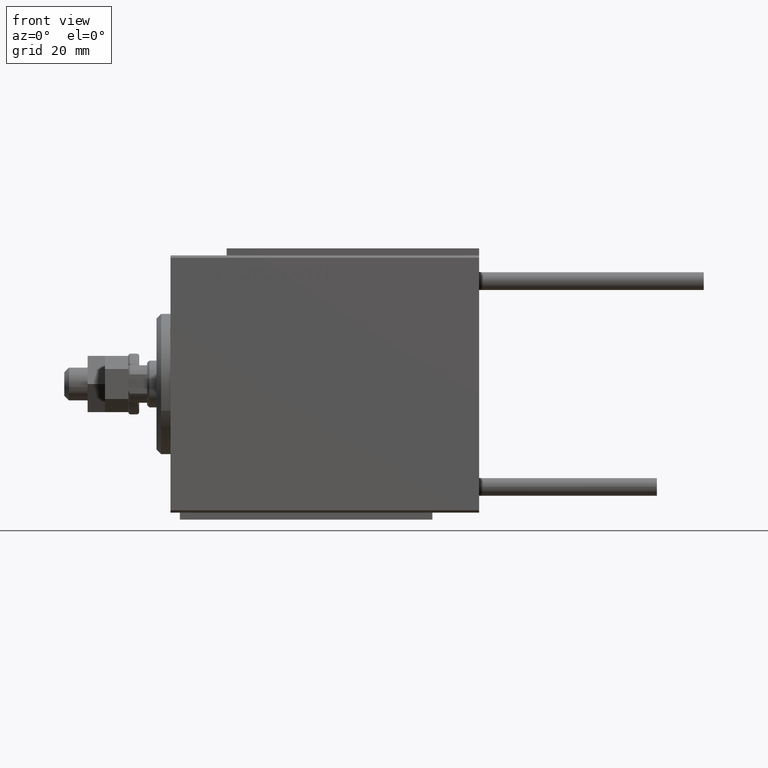
[diagram: clean part render]
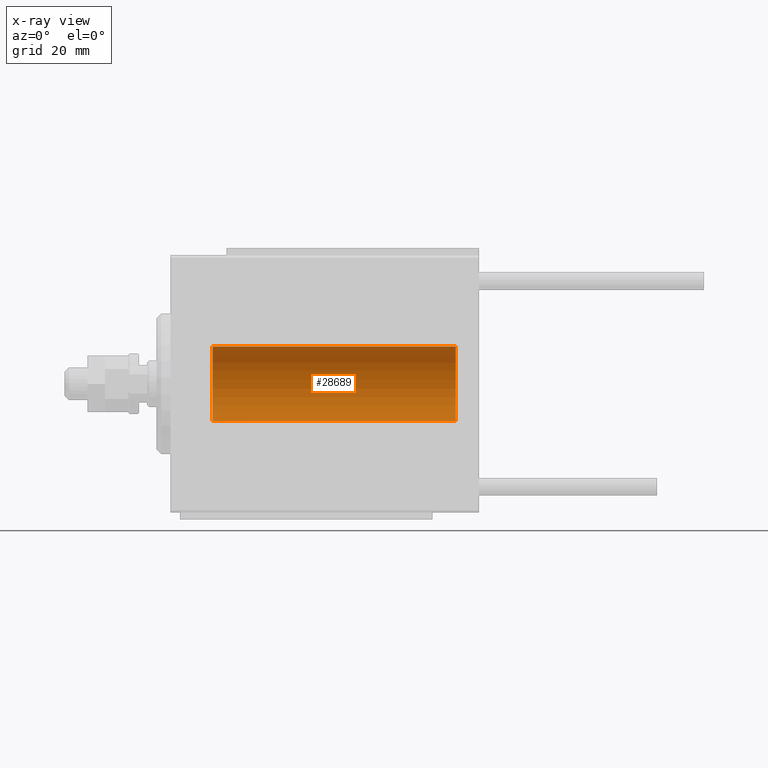
[diagram: x-ray — body ghosted, one internal face saturated and labeled with its STEP entity id]
A machine part, front view, then the same camera in x-ray: the body is ghosted and one INTERNAL B-rep face — a face not visible from any outside direction — is saturated and labeled: STEP entity #28689.
In plain terms, the highlighted cylindrical surface (partial cylindrical patch) has radius 8 mm, axis along (-1, -0, -0).
Its self-contained STEP definition (entity closure, byte-faithful):
#248 = DIRECTION ( 'NONE',  ( 0.000000000000000000, 0.000000000000000000, 1.000000000000000000 ) ) ;
#1026 = CARTESIAN_POINT ( 'NONE',  ( 54.28266791658456469, 0.3277916934117449665, -7.994719249713587494 ) ) ;
#1185 = ORIENTED_EDGE ( 'NONE', *, *, #45176, .T. ) ;
#1278 = CARTESIAN_POINT ( 'NONE',  ( 54.73146701955094784, 0.9991832710565817788, -7.938201675418737224 ) ) ;
#1921 = CARTESIAN_POINT ( 'NONE',  ( 61.00000000000000000, 9.797174393178821713E-16, -7.999999999999998224 ) ) ;
#2036 = CARTESIAN_POINT ( 'NONE',  ( 54.50115498801909553, 0.7689725568822833868, -7.963798983873343396 ) ) ;
#2424 = CARTESIAN_POINT ( 'NONE',  ( 9.000000000000001776, 0.000000000000000000, 7.999999999999998224 ) ) ;
#2666 = CARTESIAN_POINT ( 'NONE',  ( 61.00000000000000000, 0.000000000000000000, 7.999999999999998224 ) ) ;
#2789 = VECTOR ( 'NONE', #44473, 1000.000000000000000 ) ;
#2914 = CARTESIAN_POINT ( 'NONE',  ( 21.75000000000000355, 9.797173987961664550E-16, -7.999999999999998224 ) ) ;
#4488 = CARTESIAN_POINT ( 'NONE',  ( 61.00000000000000000, 9.797174393178821713E-16, -7.999999999999998224 ) ) ;
#5358 = CARTESIAN_POINT ( 'NONE',  ( 56.70976650520091766, 0.3250523954932728055, -7.993796610540221614 ) ) ;
#6095 = AXIS2_PLACEMENT_3D ( 'NONE', #20384, #20635, #20123 ) ;
#6207 = EDGE_CURVE ( 'NONE', #16338, #41989, #47435, .T. ) ;
#7205 = CARTESIAN_POINT ( 'NONE',  ( 61.00000000000000000, 0.000000000000000000, 0.000000000000000000 ) ) ;
#7481 = CARTESIAN_POINT ( 'NONE',  ( 19.50115498801908842, 0.7689725568822820545, -7.963798983873345172 ) ) ;
#8667 = CARTESIAN_POINT ( 'NONE',  ( 54.25000000000002132, 0.1654536524217949667, -7.999999999999998224 ) ) ;
#9179 = CARTESIAN_POINT ( 'NONE',  ( 56.26739091610630084, 1.000368629246203511, -7.938072339095204377 ) ) ;
#11023 = FACE_OUTER_BOUND ( 'NONE', #32529, .T. ) ;
#11056 = CARTESIAN_POINT ( 'NONE',  ( 19.73146701955095139, 0.9991832710565804465, -7.938201675418735448 ) ) ;
#11962 = DIRECTION ( 'NONE',  ( -1.000000000000000000, 0.000000000000000000, 0.000000000000000000 ) ) ;
#12097 = CARTESIAN_POINT ( 'NONE',  ( 54.25000000000000711, -7.658604007271468488E-15, -7.999999999999998224 ) ) ;
#12747 = CARTESIAN_POINT ( 'NONE',  ( 56.74999999999999289, 9.797173987961664550E-16, -7.999999999999998224 ) ) ;
#13001 = CARTESIAN_POINT ( 'NONE',  ( 55.58119849493555620, 1.250030652953400434, -7.901735465557267801 ) ) ;
#13251 = CARTESIAN_POINT ( 'NONE',  ( 55.33619145091235936, 1.249938428426571102, -7.901750054830717573 ) ) ;
#13506 = CARTESIAN_POINT ( 'NONE',  ( 56.68608944587721510, 0.4029817482954575758, -7.990203133273719338 ) ) ;
#13760 = EDGE_CURVE ( 'NONE', #16816, #34553, #49259, .T. ) ;
#14343 = CARTESIAN_POINT ( 'NONE',  ( 61.00000000000000000, 9.797174393178821713E-16, -7.999999999999998224 ) ) ;
#14633 = CARTESIAN_POINT ( 'NONE',  ( 20.90257413385907270, 1.186236229830387900, -7.911627449023364456 ) ) ;
#15007 = EDGE_CURVE ( 'NONE', #35157, #16816, #25789, .T. ) ;
#15354 = ORIENTED_EDGE ( 'NONE', *, *, #6207, .T. ) ;
#15379 = CARTESIAN_POINT ( 'NONE',  ( 19.25000000000000355, 0.1654536524217967430, -8.000000000000000000 ) ) ;
#15618 = CARTESIAN_POINT ( 'NONE',  ( 21.59204967621043991, 0.6298709050361922523, -7.976604806854521001 ) ) ;
#16338 = VERTEX_POINT ( 'NONE', #47220 ) ;
#16816 = VERTEX_POINT ( 'NONE', #40765 ) ;
#16976 = VECTOR ( 'NONE', #19693, 1000.000000000000000 ) ;
#18158 = DIRECTION ( 'NONE',  ( -1.000000000000000000, -0.000000000000000000, -0.000000000000000000 ) ) ;
#18944 = CARTESIAN_POINT ( 'NONE',  ( 20.66417091690311381, 1.241868426634442191, -7.903038949453011774 ) ) ;
#19134 = CARTESIAN_POINT ( 'NONE',  ( 21.75000000000000355, 9.797173987961664550E-16, -7.999999999999998224 ) ) ;
#19302 = VERTEX_POINT ( 'NONE', #12097 ) ;
#19437 = CARTESIAN_POINT ( 'NONE',  ( 21.12982270639373894, 1.092113850918996709, -7.925358570881165576 ) ) ;
#19693 = DIRECTION ( 'NONE',  ( -1.000000000000000000, -0.000000000000000000, -0.000000000000000000 ) ) ;
#19733 = CARTESIAN_POINT ( 'NONE',  ( 61.00000000000000000, 0.000000000000000000, 7.999999999999998224 ) ) ;
#20017 = DIRECTION ( 'NONE',  ( -1.000000000000000000, -0.000000000000000000, -0.000000000000000000 ) ) ;
#20123 = DIRECTION ( 'NONE',  ( 0.000000000000000000, 0.000000000000000000, 1.000000000000000000 ) ) ;
#20384 = CARTESIAN_POINT ( 'NONE',  ( 9.000000000000001776, 0.000000000000000000, 0.000000000000000000 ) ) ;
#20523 = LINE ( 'NONE', #4488, #40031 ) ;
#20635 = DIRECTION ( 'NONE',  ( -1.000000000000000000, 0.000000000000000000, 0.000000000000000000 ) ) ;
#20894 = CARTESIAN_POINT ( 'NONE',  ( 56.74999999999998579, 0.08164616652084630277, -7.999999999999996447 ) ) ;
#20981 = EDGE_CURVE ( 'NONE', #19302, #34553, #34316, .T. ) ;
#22205 = EDGE_CURVE ( 'NONE', #35157, #46759, #23280, .T. ) ;
#22269 = CARTESIAN_POINT ( 'NONE',  ( 20.58119849493555265, 1.250030652953401766, -7.901735465557269578 ) ) ;
#22774 = CARTESIAN_POINT ( 'NONE',  ( 20.33619145091235936, 1.249938428426572656, -7.901750054830718462 ) ) ;
#23280 = LINE ( 'NONE', #2666, #16976 ) ;
#24204 = CARTESIAN_POINT ( 'NONE',  ( 56.59204967621043636, 0.6298709050361933626, -7.976604806854519225 ) ) ;
#24701 = CARTESIAN_POINT ( 'NONE',  ( 56.50031982237067041, 0.7674545364220043409, -7.963965305651047544 ) ) ;
#25789 = CIRCLE ( 'NONE', #45342, 7.999999999999998224 ) ;
#26569 = CYLINDRICAL_SURFACE ( 'NONE', #33489, 7.999999999999998224 ) ;
#26601 = CARTESIAN_POINT ( 'NONE',  ( 19.87074834296262438, 1.092266057037466265, -7.925334523600930936 ) ) ;
#26605 = VECTOR ( 'NONE', #29863, 1000.000000000000000 ) ;
#27318 = CARTESIAN_POINT ( 'NONE',  ( 56.74999999999999289, 9.797173987961664550E-16, -7.999999999999998224 ) ) ;
#28523 = CARTESIAN_POINT ( 'NONE',  ( 55.66417091690311025, 1.241868426634440636, -7.903038949453011774 ) ) ;
#28689 = ADVANCED_FACE ( 'NONE', ( #11023 ), #26569, .F. ) ;
#28781 = CARTESIAN_POINT ( 'NONE',  ( 55.82459038316878264, 1.209888574283865648, -7.907997942808291825 ) ) ;
#29863 = DIRECTION ( 'NONE',  ( -1.000000000000000000, -0.000000000000000000, -0.000000000000000000 ) ) ;
#30154 = CARTESIAN_POINT ( 'NONE',  ( 21.74181525892406697, 0.1645871186493925442, -7.998709545350108918 ) ) ;
#30358 = ORIENTED_EDGE ( 'NONE', *, *, #31953, .F. ) ;
#30404 = CARTESIAN_POINT ( 'NONE',  ( 19.25000000000000711, -6.254940236236577124E-15, -7.999999999999998224 ) ) ;
#30490 = CIRCLE ( 'NONE', #6095, 7.999999999999998224 ) ;
#30902 = CARTESIAN_POINT ( 'NONE',  ( 21.50031982237066330, 0.7674545364220048960, -7.963965305651045767 ) ) ;
#31953 = EDGE_CURVE ( 'NONE', #16338, #37975, #48562, .T. ) ;
#32529 = EDGE_LOOP ( 'NONE', ( #49841, #49270, #41514, #1185, #30358, #15354, #47242, #33980 ) ) ;
#33489 = AXIS2_PLACEMENT_3D ( 'NONE', #7205, #18158, #49513 ) ;
#33980 = ORIENTED_EDGE ( 'NONE', *, *, #20981, .T. ) ;
#34316 = B_SPLINE_CURVE_WITH_KNOTS ( 'NONE', 3,
 ( #40757, #8667, #1026, #40257, #2036, #1278, #47658, #48165, #13251, #13001, #28523, #28781, #44077, #48418, #9179, #24701, #24204, #13506, #5358, #39752, #20894, #12747 ),
 .UNSPECIFIED., .F., .F.,
 ( 4, 2, 2, 2, 2, 2, 2, 2, 2, 2, 4 ),
 ( 6.559457490098071143E-19, 0.0004892585179631266101, 0.0009785170359262523529, 0.001467775553889378313, 0.001957034071852504272, 0.002201663330834067577, 0.002446292589815630015, 0.002935551107778736676, 0.003424809625741843336, 0.003669438884723392330, 0.003914068143704941757 ),
 .UNSPECIFIED. ) ;
#34553 = VERTEX_POINT ( 'NONE', #27318 ) ;
#34741 = CARTESIAN_POINT ( 'NONE',  ( 21.26739091610630084, 1.000368629246204399, -7.938072339095202601 ) ) ;
#34899 = CARTESIAN_POINT ( 'NONE',  ( 61.00000000000000000, 0.000000000000000000, 0.000000000000000000 ) ) ;
#35157 = VERTEX_POINT ( 'NONE', #19733 ) ;
#37816 = CARTESIAN_POINT ( 'NONE',  ( 21.70976650520091766, 0.3250523954932728055, -7.993796610540221614 ) ) ;
#37975 = VERTEX_POINT ( 'NONE', #46947 ) ;
#39558 = EDGE_CURVE ( 'NONE', #19302, #41989, #20523, .T. ) ;
#39752 = CARTESIAN_POINT ( 'NONE',  ( 56.74181525892406341, 0.1645871186493932936, -7.998709545350108918 ) ) ;
#40031 = VECTOR ( 'NONE', #20017, 1000.000000000000000 ) ;
#40257 = CARTESIAN_POINT ( 'NONE',  ( 54.40826977845300405, 0.6304521543648562432, -7.976560245937302618 ) ) ;
#40757 = CARTESIAN_POINT ( 'NONE',  ( 54.25000000000000711, -7.658604007271468488E-15, -7.999999999999998224 ) ) ;
#40765 = CARTESIAN_POINT ( 'NONE',  ( 61.00000000000000000, 9.797174393178821713E-16, -7.999999999999998224 ) ) ;
#41514 = ORIENTED_EDGE ( 'NONE', *, *, #22205, .T. ) ;
#41989 = VERTEX_POINT ( 'NONE', #19134 ) ;
#42148 = CARTESIAN_POINT ( 'NONE',  ( 19.28266791658456825, 0.3277916934117462988, -7.994719249713585718 ) ) ;
#42392 = CARTESIAN_POINT ( 'NONE',  ( 19.40826977845303247, 0.6304521543648577975, -7.976560245937304394 ) ) ;
#44077 = CARTESIAN_POINT ( 'NONE',  ( 55.90257413385906915, 1.186236229830388789, -7.911627449023368008 ) ) ;
#44473 = DIRECTION ( 'NONE',  ( -1.000000000000000000, -0.000000000000000000, -0.000000000000000000 ) ) ;
#45176 = EDGE_CURVE ( 'NONE', #46759, #37975, #30490, .T. ) ;
#45342 = AXIS2_PLACEMENT_3D ( 'NONE', #34899, #11962, #248 ) ;
#45714 = CARTESIAN_POINT ( 'NONE',  ( 20.17150130922778573, 1.217000984963200638, -7.907141142849006599 ) ) ;
#46469 = CARTESIAN_POINT ( 'NONE',  ( 21.75000000000000355, 0.08164616652084660808, -8.000000000000000000 ) ) ;
#46711 = CARTESIAN_POINT ( 'NONE',  ( 21.68608944587722931, 0.4029817482954560215, -7.990203133273719338 ) ) ;
#46759 = VERTEX_POINT ( 'NONE', #2424 ) ;
#46947 = CARTESIAN_POINT ( 'NONE',  ( 9.000000000000001776, 9.797174393178821713E-16, -7.999999999999998224 ) ) ;
#47220 = CARTESIAN_POINT ( 'NONE',  ( 19.25000000000000711, -6.254940236236577124E-15, -7.999999999999998224 ) ) ;
#47242 = ORIENTED_EDGE ( 'NONE', *, *, #39558, .F. ) ;
#47435 = B_SPLINE_CURVE_WITH_KNOTS ( 'NONE', 3,
 ( #30404, #15379, #42148, #42392, #7481, #11056, #26601, #45714, #22774, #22269, #18944, #50040, #14633, #19437, #34741, #30902, #15618, #46711, #37816, #30154, #46469, #2914 ),
 .UNSPECIFIED., .F., .F.,
 ( 4, 2, 2, 2, 2, 2, 2, 2, 2, 2, 4 ),
 ( 3.968077459664569325E-19, 0.0004892585179631270438, 0.0009785170359262536539, 0.001467775553889380264, 0.001957034071852506874, 0.002201663330834064975, 0.002446292589815623076, 0.002935551107778729737, 0.003424809625741836398, 0.003669438884723391896, 0.003914068143704946962 ),
 .UNSPECIFIED. ) ;
#47658 = CARTESIAN_POINT ( 'NONE',  ( 54.87074834296262793, 1.092266057037465599, -7.925334523600930936 ) ) ;
#48165 = CARTESIAN_POINT ( 'NONE',  ( 55.17150130922777151, 1.217000984963198862, -7.907141142849008375 ) ) ;
#48418 = CARTESIAN_POINT ( 'NONE',  ( 56.12982270639372473, 1.092113850918998263, -7.925358570881162024 ) ) ;
#48562 = LINE ( 'NONE', #1921, #2789 ) ;
#49259 = LINE ( 'NONE', #14343, #26605 ) ;
#49270 = ORIENTED_EDGE ( 'NONE', *, *, #15007, .F. ) ;
#49513 = DIRECTION ( 'NONE',  ( 0.000000000000000000, 0.000000000000000000, 1.000000000000000000 ) ) ;
#49841 = ORIENTED_EDGE ( 'NONE', *, *, #13760, .F. ) ;
#50040 = CARTESIAN_POINT ( 'NONE',  ( 20.82459038316880040, 1.209888574283867646, -7.907997942808293601 ) ) ;